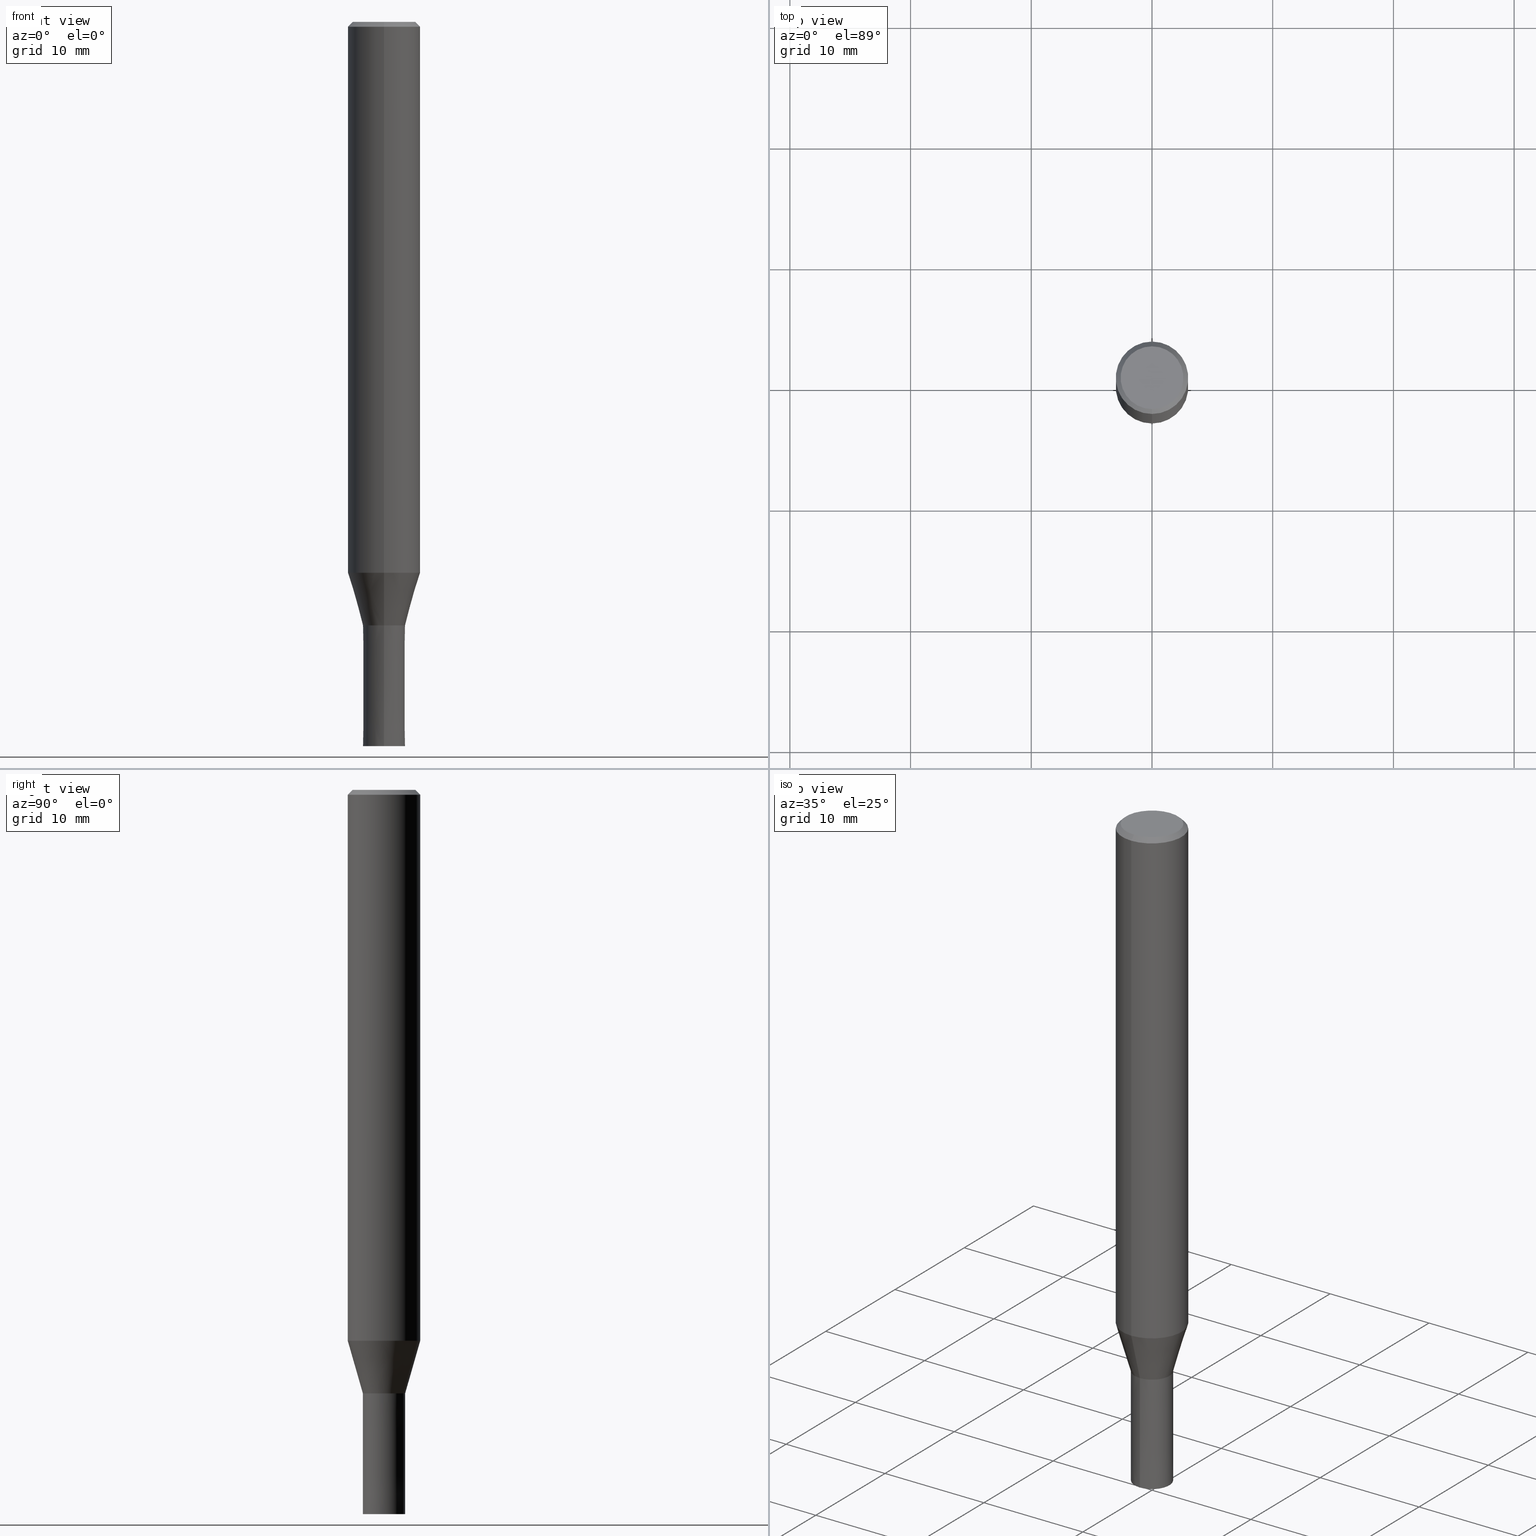
[diagram: canonical four-view strip — front | top / right | iso, engineering-drawing reading convention]
A machine part, canonical four-view strip (front | top / right | iso — engineering-drawing reading convention). The complete STEP part file that produces these views, byte-faithful:
ISO-10303-21;
HEADER;
FILE_DESCRIPTION(('no description'),'unknown implementation level');
FILE_NAME('CZS4035-1000-Huellk.stp','  ',('CIMSOURCE GmbH'),('CADClick - KiM GmbH - www.kimweb.de'),'unknown preprocess','ACIS','unknown authorization');
FILE_SCHEMA(('automotive_design'));
ENDSEC;
DATA;
#1=MECHANICAL_DESIGN_GEOMETRIC_PRESENTATION_REPRESENTATION(' ',(#14,#15,#16,#17,#18,#19,#20,#21,#22,#23,#24,#25,#26,#27,#28,#29,#30,#31,#32,#33,#34,#35,#36,#37,#38,#39,#40,#41,#42,#43,#44,#45,#46,#47,#48,#49,#50,#51,#52,#53,#54,#55,#56,#57,#58,#59,#60,#61,#62,#63,#64),#10);
#2=PRODUCT_DEFINITION_CONTEXT('',#65,'design');
#3=APPLICATION_PROTOCOL_DEFINITION('INTERNATIONAL STANDARD','automotive_design',1994,#65);
#4=PRODUCT_CATEGORY_RELATIONSHIP('NONE','NONE',#66,#67);
#5=SHAPE_DEFINITION_REPRESENTATION(#68,#69);
#6=PRODUCT_DEFINITION_CONTEXT('',#70,'design');
#7=APPLICATION_PROTOCOL_DEFINITION('INTERNATIONAL STANDARD','automotive_design',1994,#70);
#8=PRODUCT_CATEGORY_RELATIONSHIP('NONE','NONE',#71,#72);
#9=SHAPE_DEFINITION_REPRESENTATION(#73,#74);
#10= (GEOMETRIC_REPRESENTATION_CONTEXT(3)GLOBAL_UNCERTAINTY_ASSIGNED_CONTEXT((#77))GLOBAL_UNIT_ASSIGNED_CONTEXT((#79,#80,#81))REPRESENTATION_CONTEXT('NONE','WORKSPACE'));
#14=STYLED_ITEM('',(#83),#84);
#15=STYLED_ITEM('',(#85),#86);
#16=STYLED_ITEM('',(#87),#88);
#17=STYLED_ITEM('',(#89),#90);
#18=STYLED_ITEM('',(#91),#92);
#19=STYLED_ITEM('',(#93),#94);
#20=STYLED_ITEM('',(#95),#96);
#21=STYLED_ITEM('',(#97),#98);
#22=STYLED_ITEM('',(#99),#100);
#23=STYLED_ITEM('',(#101),#102);
#24=STYLED_ITEM('',(#103),#104);
#25=STYLED_ITEM('',(#105),#106);
#26=STYLED_ITEM('',(#107),#108);
#27=STYLED_ITEM('',(#109),#110);
#28=STYLED_ITEM('',(#111),#112);
#29=STYLED_ITEM('',(#113),#114);
#30=STYLED_ITEM('',(#115),#116);
#31=STYLED_ITEM('',(#117),#118);
#32=STYLED_ITEM('',(#119),#120);
#33=STYLED_ITEM('',(#121),#122);
#34=STYLED_ITEM('',(#123),#124);
#35=STYLED_ITEM('',(#125),#126);
#36=STYLED_ITEM('',(#127),#128);
#37=STYLED_ITEM('',(#129),#130);
#38=STYLED_ITEM('',(#131),#132);
#39=STYLED_ITEM('',(#133),#134);
#40=STYLED_ITEM('',(#135),#136);
#41=STYLED_ITEM('',(#137),#138);
#42=STYLED_ITEM('',(#139),#140);
#43=STYLED_ITEM('',(#141),#142);
#44=STYLED_ITEM('',(#143),#144);
#45=STYLED_ITEM('',(#145),#146);
#46=STYLED_ITEM('',(#147),#148);
#47=STYLED_ITEM('',(#149),#150);
#48=STYLED_ITEM('',(#151),#152);
#49=STYLED_ITEM('',(#153),#154);
#50=STYLED_ITEM('',(#155),#156);
#51=STYLED_ITEM('',(#157),#158);
#52=STYLED_ITEM('',(#159),#160);
#53=STYLED_ITEM('',(#161),#162);
#54=STYLED_ITEM('',(#163),#164);
#55=STYLED_ITEM('',(#165),#166);
#56=STYLED_ITEM('',(#167),#168);
#57=STYLED_ITEM('',(#169),#170);
#58=STYLED_ITEM('',(#171),#172);
#59=STYLED_ITEM('',(#173),#174);
#60=STYLED_ITEM('',(#175),#176);
#61=STYLED_ITEM('',(#177),#178);
#62=STYLED_ITEM('',(#179),#180);
#63=STYLED_ITEM('',(#181),#182);
#64=STYLED_ITEM('',(#183),#184);
#65=APPLICATION_CONTEXT(' ');
#66=PRODUCT_CATEGORY('part','NONE');
#67=PRODUCT_RELATED_PRODUCT_CATEGORY('detail',' ',(#185));
#68=PRODUCT_DEFINITION_SHAPE('NONE','NONE',#186);
#69=ADVANCED_BREP_SHAPE_REPRESENTATION('1',(#150,#187),#10);
#70=APPLICATION_CONTEXT(' ');
#71=PRODUCT_CATEGORY('part','NONE');
#72=PRODUCT_RELATED_PRODUCT_CATEGORY('detail',' ',(#188));
#73=PRODUCT_DEFINITION_SHAPE('NONE','NONE',#189);
#74=ADVANCED_BREP_SHAPE_REPRESENTATION('2',(#160,#190),#10);
#77=UNCERTAINTY_MEASURE_WITH_UNIT(LENGTH_MEASURE(1.0E-006),#79,'','');
#79= (CONVERSION_BASED_UNIT('MILLIMETRE',#193)LENGTH_UNIT()NAMED_UNIT(#196));
#80= (NAMED_UNIT(#198)PLANE_ANGLE_UNIT()SI_UNIT($,.RADIAN.));
#81= (NAMED_UNIT(#198)SOLID_ANGLE_UNIT()SI_UNIT($,.STERADIAN.));
#83=PRESENTATION_STYLE_ASSIGNMENT((#204));
#84=ADVANCED_FACE('',(#205),#206,.T.);
#85=PRESENTATION_STYLE_ASSIGNMENT((#207));
#86=VERTEX_POINT('',#208);
#87=PRESENTATION_STYLE_ASSIGNMENT((#209));
#88=EDGE_CURVE('',#98,#122,#210,.T.);
#89=PRESENTATION_STYLE_ASSIGNMENT((#211));
#90=EDGE_CURVE('',#158,#174,#212,.T.);
#91=PRESENTATION_STYLE_ASSIGNMENT((#213));
#92=VERTEX_POINT('',#214);
#93=PRESENTATION_STYLE_ASSIGNMENT((#215));
#94=EDGE_CURVE('',#92,#168,#216,.T.);
#95=PRESENTATION_STYLE_ASSIGNMENT((#217));
#96=EDGE_CURVE('',#132,#86,#218,.T.);
#97=PRESENTATION_STYLE_ASSIGNMENT((#219));
#98=VERTEX_POINT('',#220);
#99=PRESENTATION_STYLE_ASSIGNMENT((#221));
#100=EDGE_CURVE('',#120,#124,#222,.T.);
#101=PRESENTATION_STYLE_ASSIGNMENT((#223));
#102=ADVANCED_FACE('',(#224),#225,.T.);
#103=PRESENTATION_STYLE_ASSIGNMENT((#226));
#104=ADVANCED_FACE('',(#227),#228,.T.);
#105=PRESENTATION_STYLE_ASSIGNMENT((#229));
#106=EDGE_CURVE('',#120,#118,#230,.T.);
#107=PRESENTATION_STYLE_ASSIGNMENT((#231));
#108=ADVANCED_FACE('',(#232),#233,.T.);
#109=PRESENTATION_STYLE_ASSIGNMENT((#234));
#110=EDGE_CURVE('',#132,#122,#235,.T.);
#111=PRESENTATION_STYLE_ASSIGNMENT((#236));
#112=ADVANCED_FACE('',(#237),#238,.T.);
#113=PRESENTATION_STYLE_ASSIGNMENT((#239));
#114=EDGE_CURVE('',#168,#92,#240,.T.);
#115=PRESENTATION_STYLE_ASSIGNMENT((#241));
#116=EDGE_CURVE('',#122,#168,#242,.T.);
#117=PRESENTATION_STYLE_ASSIGNMENT((#243));
#118=VERTEX_POINT('',#244);
#119=PRESENTATION_STYLE_ASSIGNMENT((#245));
#120=VERTEX_POINT('',#246);
#121=PRESENTATION_STYLE_ASSIGNMENT((#247));
#122=VERTEX_POINT('',#248);
#123=PRESENTATION_STYLE_ASSIGNMENT((#249));
#124=VERTEX_POINT('',#250);
#125=PRESENTATION_STYLE_ASSIGNMENT((#251));
#126=VERTEX_POINT('',#252);
#127=PRESENTATION_STYLE_ASSIGNMENT((#253));
#128=EDGE_CURVE('',#86,#132,#254,.T.);
#129=PRESENTATION_STYLE_ASSIGNMENT((#255));
#130=EDGE_CURVE('',#126,#118,#256,.T.);
#131=PRESENTATION_STYLE_ASSIGNMENT((#257));
#132=VERTEX_POINT('',#258);
#133=PRESENTATION_STYLE_ASSIGNMENT((#259));
#134=EDGE_CURVE('',#98,#86,#260,.T.);
#135=PRESENTATION_STYLE_ASSIGNMENT((#261));
#136=ADVANCED_FACE('',(#262),#263,.T.);
#137=PRESENTATION_STYLE_ASSIGNMENT((#264));
#138=ADVANCED_FACE('',(#265),#266,.T.);
#139=PRESENTATION_STYLE_ASSIGNMENT((#267));
#140=ADVANCED_FACE('',(#268),#269,.T.);
#141=PRESENTATION_STYLE_ASSIGNMENT((#270));
#142=EDGE_CURVE('',#126,#124,#271,.T.);
#143=PRESENTATION_STYLE_ASSIGNMENT((#272));
#144=ADVANCED_FACE('',(#273),#274,.T.);
#145=PRESENTATION_STYLE_ASSIGNMENT((#275));
#146=EDGE_CURVE('',#124,#120,#276,.T.);
#147=PRESENTATION_STYLE_ASSIGNMENT((#277));
#148=EDGE_CURVE('',#122,#98,#278,.T.);
#149=PRESENTATION_STYLE_ASSIGNMENT((#279));
#150=MANIFOLD_SOLID_BREP('1',#280);
#151=PRESENTATION_STYLE_ASSIGNMENT((#281));
#152=EDGE_CURVE('',#180,#174,#282,.T.);
#153=PRESENTATION_STYLE_ASSIGNMENT((#283));
#154=VERTEX_POINT('',#284);
#155=PRESENTATION_STYLE_ASSIGNMENT((#285));
#156=EDGE_CURVE('',#180,#154,#286,.T.);
#157=PRESENTATION_STYLE_ASSIGNMENT((#287));
#158=VERTEX_POINT('',#288);
#159=PRESENTATION_STYLE_ASSIGNMENT((#289));
#160=MANIFOLD_SOLID_BREP('2',#290);
#161=PRESENTATION_STYLE_ASSIGNMENT((#291));
#162=ADVANCED_FACE('',(#292),#293,.T.);
#163=PRESENTATION_STYLE_ASSIGNMENT((#294));
#164=EDGE_CURVE('',#154,#180,#295,.T.);
#165=PRESENTATION_STYLE_ASSIGNMENT((#296));
#166=ADVANCED_FACE('',(#297),#298,.T.);
#167=PRESENTATION_STYLE_ASSIGNMENT((#299));
#168=VERTEX_POINT('',#300);
#169=PRESENTATION_STYLE_ASSIGNMENT((#301));
#170=EDGE_CURVE('',#174,#158,#302,.T.);
#171=PRESENTATION_STYLE_ASSIGNMENT((#303));
#172=EDGE_CURVE('',#158,#154,#304,.T.);
#173=PRESENTATION_STYLE_ASSIGNMENT((#305));
#174=VERTEX_POINT('',#306);
#175=PRESENTATION_STYLE_ASSIGNMENT((#307));
#176=EDGE_CURVE('',#118,#126,#308,.T.);
#177=PRESENTATION_STYLE_ASSIGNMENT((#309));
#178=EDGE_CURVE('',#92,#98,#310,.T.);
#179=PRESENTATION_STYLE_ASSIGNMENT((#311));
#180=VERTEX_POINT('',#312);
#181=PRESENTATION_STYLE_ASSIGNMENT((#313));
#182=ADVANCED_FACE('',(#314,#315),#316,.T.);
#183=PRESENTATION_STYLE_ASSIGNMENT((#317));
#184=ADVANCED_FACE('',(#318),#319,.T.);
#185=PRODUCT('1','1','PART-1-DESC',(#320));
#186=PRODUCT_DEFINITION('NONE','NONE',#321,#2);
#187=AXIS2_PLACEMENT_3D('',#322,#323,#324);
#188=PRODUCT('2','2','PART-2-DESC',(#325));
#189=PRODUCT_DEFINITION('NONE','NONE',#326,#6);
#190=AXIS2_PLACEMENT_3D('',#327,#328,#329);
#193=LENGTH_MEASURE_WITH_UNIT(LENGTH_MEASURE(1.0),#330);
#196=DIMENSIONAL_EXPONENTS(1.0,0.0,0.0,0.0,0.0,0.0,0.0);
#198=DIMENSIONAL_EXPONENTS(0.0,0.0,0.0,0.0,0.0,0.0,0.0);
#204=SURFACE_STYLE_USAGE(.BOTH.,#331);
#205=FACE_OUTER_BOUND('',#332,.T.);
#206=PLANE('',#333);
#207=POINT_STYLE(' ',#334,POSITIVE_LENGTH_MEASURE(1.0E-006),#335);
#208=CARTESIAN_POINT('',(3.18397651993818E-016,-2.6,0.0));
#209=CURVE_STYLE('',#336,POSITIVE_LENGTH_MEASURE(1.0E-006),#337);
#210=CIRCLE('',#338,3.0);
#211=CURVE_STYLE('',#339,POSITIVE_LENGTH_MEASURE(1.0E-006),#340);
#212=CIRCLE('',#341,1.75);
#213=POINT_STYLE(' ',#342,POSITIVE_LENGTH_MEASURE(1.0E-006),#343);
#214=CARTESIAN_POINT('',(3.67381906146713E-016,-3.0,-45.641));
#215=CURVE_STYLE('',#344,POSITIVE_LENGTH_MEASURE(1.0E-006),#345);
#216=CIRCLE('',#346,3.0);
#217=CURVE_STYLE('',#347,POSITIVE_LENGTH_MEASURE(1.0E-006),#348);
#218=CIRCLE('',#349,2.6);
#219=POINT_STYLE(' ',#350,POSITIVE_LENGTH_MEASURE(1.0E-006),#351);
#220=CARTESIAN_POINT('',(3.67381906146713E-016,-3.0,-0.399999999999999));
#221=CURVE_STYLE('',#352,POSITIVE_LENGTH_MEASURE(1.0E-006),#353);
#222=CIRCLE('',#354,1.74995);
#223=SURFACE_STYLE_USAGE(.BOTH.,#355);
#224=FACE_OUTER_BOUND('',#356,.T.);
#225=CONICAL_SURFACE('',#357,1.74995,9.99999999966557E-006);
#226=SURFACE_STYLE_USAGE(.BOTH.,#358);
#227=FACE_OUTER_BOUND('',#359,.T.);
#228=PLANE('',#360);
#229=CURVE_STYLE('',#361,POSITIVE_LENGTH_MEASURE(1.0E-006),#362);
#230=LINE('',#363,#364);
#231=SURFACE_STYLE_USAGE(.BOTH.,#365);
#232=FACE_OUTER_BOUND('',#366,.T.);
#233=CONICAL_SURFACE('',#367,2.8,0.78539816339745);
#234=CURVE_STYLE('',#368,POSITIVE_LENGTH_MEASURE(1.0E-006),#369);
#235=LINE('',#370,#371);
#236=SURFACE_STYLE_USAGE(.BOTH.,#372);
#237=FACE_OUTER_BOUND('',#373,.T.);
#238=PLANE('',#374);
#239=CURVE_STYLE('',#375,POSITIVE_LENGTH_MEASURE(1.0E-006),#376);
#240=CIRCLE('',#377,3.0);
#241=CURVE_STYLE('',#378,POSITIVE_LENGTH_MEASURE(1.0E-006),#379);
#242=LINE('',#380,#381);
#243=POINT_STYLE(' ',#382,POSITIVE_LENGTH_MEASURE(1.0E-006),#383);
#244=CARTESIAN_POINT('',(3.67375783114944E-016,-2.99995,-45.641));
#245=POINT_STYLE(' ',#384,POSITIVE_LENGTH_MEASURE(1.0E-006),#385);
#246=CARTESIAN_POINT('',(2.14299988887147E-016,-1.74995,-50.0));
#247=POINT_STYLE(' ',#386,POSITIVE_LENGTH_MEASURE(1.0E-006),#387);
#248=CARTESIAN_POINT('',(0.0,3.0,-0.399999999999999));
#249=POINT_STYLE(' ',#388,POSITIVE_LENGTH_MEASURE(1.0E-006),#389);
#250=CARTESIAN_POINT('',(0.0,1.74995,-50.0));
#251=POINT_STYLE(' ',#390,POSITIVE_LENGTH_MEASURE(1.0E-006),#391);
#252=CARTESIAN_POINT('',(0.0,2.99995,-45.641));
#253=CURVE_STYLE('',#392,POSITIVE_LENGTH_MEASURE(1.0E-006),#393);
#254=CIRCLE('',#394,2.6);
#255=CURVE_STYLE('',#395,POSITIVE_LENGTH_MEASURE(1.0E-006),#396);
#256=CIRCLE('',#397,2.99995);
#257=POINT_STYLE(' ',#398,POSITIVE_LENGTH_MEASURE(1.0E-006),#399);
#258=CARTESIAN_POINT('',(0.0,2.6,0.0));
#259=CURVE_STYLE('',#400,POSITIVE_LENGTH_MEASURE(1.0E-006),#401);
#260=LINE('',#402,#403);
#261=SURFACE_STYLE_USAGE(.BOTH.,#404);
#262=FACE_OUTER_BOUND('',#405,.T.);
#263=CONICAL_SURFACE('',#406,2.37495,0.279268973819818);
#264=SURFACE_STYLE_USAGE(.BOTH.,#407);
#265=FACE_OUTER_BOUND('',#408,.T.);
#266=CYLINDRICAL_SURFACE('',#409,3.0);
#267=SURFACE_STYLE_USAGE(.BOTH.,#410);
#268=FACE_OUTER_BOUND('',#411,.T.);
#269=CONICAL_SURFACE('',#412,2.37495,0.279268973819818);
#270=CURVE_STYLE('',#413,POSITIVE_LENGTH_MEASURE(1.0E-006),#414);
#271=LINE('',#415,#416);
#272=SURFACE_STYLE_USAGE(.BOTH.,#417);
#273=FACE_OUTER_BOUND('',#418,.T.);
#274=CONICAL_SURFACE('',#419,2.8,0.78539816339745);
#275=CURVE_STYLE('',#420,POSITIVE_LENGTH_MEASURE(1.0E-006),#421);
#276=CIRCLE('',#422,1.74995);
#277=CURVE_STYLE('',#423,POSITIVE_LENGTH_MEASURE(1.0E-006),#424);
#278=CIRCLE('',#425,3.0);
#279=SURFACE_STYLE_USAGE(.BOTH.,#426);
#280=CLOSED_SHELL('',(#136,#138,#144,#182,#84,#108,#166,#140,#112));
#281=CURVE_STYLE('',#427,POSITIVE_LENGTH_MEASURE(1.0E-006),#428);
#282=LINE('',#429,#430);
#283=POINT_STYLE(' ',#431,POSITIVE_LENGTH_MEASURE(1.0E-006),#432);
#284=CARTESIAN_POINT('',(2.14293865855378E-016,-1.7499,-50.0));
#285=CURVE_STYLE('',#433,POSITIVE_LENGTH_MEASURE(1.0E-006),#434);
#286=CIRCLE('',#435,1.7499);
#287=POINT_STYLE(' ',#436,POSITIVE_LENGTH_MEASURE(1.0E-006),#437);
#288=CARTESIAN_POINT('',(2.14306111918916E-016,-1.75,-60.0));
#289=SURFACE_STYLE_USAGE(.BOTH.,#438);
#290=CLOSED_SHELL('',(#162,#184,#102,#104));
#291=SURFACE_STYLE_USAGE(.BOTH.,#439);
#292=FACE_OUTER_BOUND('',#440,.T.);
#293=CONICAL_SURFACE('',#441,1.74995,9.99999999966557E-006);
#294=CURVE_STYLE('',#442,POSITIVE_LENGTH_MEASURE(1.0E-006),#443);
#295=CIRCLE('',#444,1.7499);
#296=SURFACE_STYLE_USAGE(.BOTH.,#445);
#297=FACE_OUTER_BOUND('',#446,.T.);
#298=CYLINDRICAL_SURFACE('',#447,3.0);
#299=POINT_STYLE(' ',#448,POSITIVE_LENGTH_MEASURE(1.0E-006),#449);
#300=CARTESIAN_POINT('',(0.0,3.0,-45.641));
#301=CURVE_STYLE('',#450,POSITIVE_LENGTH_MEASURE(1.0E-006),#451);
#302=CIRCLE('',#452,1.75);
#303=CURVE_STYLE('',#453,POSITIVE_LENGTH_MEASURE(1.0E-006),#454);
#304=LINE('',#455,#456);
#305=POINT_STYLE(' ',#457,POSITIVE_LENGTH_MEASURE(1.0E-006),#458);
#306=CARTESIAN_POINT('',(0.0,1.75,-60.0));
#307=CURVE_STYLE('',#459,POSITIVE_LENGTH_MEASURE(1.0E-006),#460);
#308=CIRCLE('',#461,2.99995);
#309=CURVE_STYLE('',#462,POSITIVE_LENGTH_MEASURE(1.0E-006),#463);
#310=LINE('',#464,#465);
#311=POINT_STYLE(' ',#466,POSITIVE_LENGTH_MEASURE(1.0E-006),#467);
#312=CARTESIAN_POINT('',(0.0,1.7499,-50.0));
#313=SURFACE_STYLE_USAGE(.BOTH.,#468);
#314=FACE_OUTER_BOUND('',#469,.T.);
#315=FACE_BOUND('',#470,.T.);
#316=PLANE('',#471);
#317=SURFACE_STYLE_USAGE(.BOTH.,#472);
#318=FACE_OUTER_BOUND('',#473,.T.);
#319=PLANE('',#474);
#320=PRODUCT_CONTEXT('',#65,'mechanical');
#321=PRODUCT_DEFINITION_FORMATION_WITH_SPECIFIED_SOURCE(' ','NONE',#185,.NOT_KNOWN.);
#322=CARTESIAN_POINT('',(0.0,0.0,0.0));
#323=DIRECTION('',(0.0,0.0,1.0));
#324=DIRECTION('',(1.0,0.0,0.0));
#325=PRODUCT_CONTEXT('',#70,'mechanical');
#326=PRODUCT_DEFINITION_FORMATION_WITH_SPECIFIED_SOURCE(' ','NONE',#188,.NOT_KNOWN.);
#327=CARTESIAN_POINT('',(0.0,0.0,0.0));
#328=DIRECTION('',(0.0,0.0,1.0));
#329=DIRECTION('',(1.0,0.0,0.0));
#330= (NAMED_UNIT(#196)LENGTH_UNIT()SI_UNIT(.MILLI.,.METRE.));
#331=SURFACE_SIDE_STYLE('',(#476));
#332=EDGE_LOOP('',(#477,#478));
#333=AXIS2_PLACEMENT_3D('',#479,#480,#481);
#334=PRE_DEFINED_MARKER('');
#335=COLOUR_RGB('',0.498039215803146,0.498039215803146,0.498039215803146);
#336=DRAUGHTING_PRE_DEFINED_CURVE_FONT('continuous');
#337=COLOUR_RGB('',0.498039215803146,0.498039215803146,0.498039215803146);
#338=AXIS2_PLACEMENT_3D('',#482,#483,#484);
#339=DRAUGHTING_PRE_DEFINED_CURVE_FONT('continuous');
#340=COLOUR_RGB('',0.800000011920929,0.800000011920929,0.800000011920929);
#341=AXIS2_PLACEMENT_3D('',#485,#486,#487);
#342=PRE_DEFINED_MARKER('');
#343=COLOUR_RGB('',0.498039215803146,0.498039215803146,0.498039215803146);
#344=DRAUGHTING_PRE_DEFINED_CURVE_FONT('continuous');
#345=COLOUR_RGB('',0.498039215803146,0.498039215803146,0.498039215803146);
#346=AXIS2_PLACEMENT_3D('',#488,#489,#490);
#347=DRAUGHTING_PRE_DEFINED_CURVE_FONT('continuous');
#348=COLOUR_RGB('',0.498039215803146,0.498039215803146,0.498039215803146);
#349=AXIS2_PLACEMENT_3D('',#491,#492,#493);
#350=PRE_DEFINED_MARKER('');
#351=COLOUR_RGB('',0.498039215803146,0.498039215803146,0.498039215803146);
#352=DRAUGHTING_PRE_DEFINED_CURVE_FONT('continuous');
#353=COLOUR_RGB('',0.498039215803146,0.498039215803146,0.498039215803146);
#354=AXIS2_PLACEMENT_3D('',#494,#495,#496);
#355=SURFACE_SIDE_STYLE('',(#497));
#356=EDGE_LOOP('',(#498,#499,#500,#501));
#357=AXIS2_PLACEMENT_3D('',#502,#503,#504);
#358=SURFACE_SIDE_STYLE('',(#505));
#359=EDGE_LOOP('',(#506,#507));
#360=AXIS2_PLACEMENT_3D('',#508,#509,#510);
#361=DRAUGHTING_PRE_DEFINED_CURVE_FONT('continuous');
#362=COLOUR_RGB('',0.498039215803146,0.498039215803146,0.498039215803146);
#363=CARTESIAN_POINT('',(2.90837886001046E-016,-2.37495,-47.8205));
#364=VECTOR('',#511,1.0);
#365=SURFACE_SIDE_STYLE('',(#512));
#366=EDGE_LOOP('',(#513,#514,#515,#516));
#367=AXIS2_PLACEMENT_3D('',#517,#518,#519);
#368=DRAUGHTING_PRE_DEFINED_CURVE_FONT('continuous');
#369=COLOUR_RGB('',0.498039215803146,0.498039215803146,0.498039215803146);
#370=CARTESIAN_POINT('',(-3.42889779070266E-016,2.8,-0.200000000000003));
#371=VECTOR('',#520,1.0);
#372=SURFACE_SIDE_STYLE('',(#521));
#373=EDGE_LOOP('',(#522,#523));
#374=AXIS2_PLACEMENT_3D('',#524,#525,#526);
#375=DRAUGHTING_PRE_DEFINED_CURVE_FONT('continuous');
#376=COLOUR_RGB('',0.498039215803146,0.498039215803146,0.498039215803146);
#377=AXIS2_PLACEMENT_3D('',#527,#528,#529);
#378=DRAUGHTING_PRE_DEFINED_CURVE_FONT('continuous');
#379=COLOUR_RGB('',0.498039215803146,0.498039215803146,0.498039215803146);
#380=CARTESIAN_POINT('',(-3.67381906146713E-016,3.0,-23.0205));
#381=VECTOR('',#530,1.0);
#382=PRE_DEFINED_MARKER('');
#383=COLOUR_RGB('',0.498039215803146,0.498039215803146,0.498039215803146);
#384=PRE_DEFINED_MARKER('');
#385=COLOUR_RGB('',0.498039215803146,0.498039215803146,0.498039215803146);
#386=PRE_DEFINED_MARKER('');
#387=COLOUR_RGB('',0.498039215803146,0.498039215803146,0.498039215803146);
#388=PRE_DEFINED_MARKER('');
#389=COLOUR_RGB('',0.498039215803146,0.498039215803146,0.498039215803146);
#390=PRE_DEFINED_MARKER('');
#391=COLOUR_RGB('',0.498039215803146,0.498039215803146,0.498039215803146);
#392=DRAUGHTING_PRE_DEFINED_CURVE_FONT('continuous');
#393=COLOUR_RGB('',0.498039215803146,0.498039215803146,0.498039215803146);
#394=AXIS2_PLACEMENT_3D('',#531,#532,#533);
#395=DRAUGHTING_PRE_DEFINED_CURVE_FONT('continuous');
#396=COLOUR_RGB('',0.498039215803146,0.498039215803146,0.498039215803146);
#397=AXIS2_PLACEMENT_3D('',#534,#535,#536);
#398=PRE_DEFINED_MARKER('');
#399=COLOUR_RGB('',0.498039215803146,0.498039215803146,0.498039215803146);
#400=DRAUGHTING_PRE_DEFINED_CURVE_FONT('continuous');
#401=COLOUR_RGB('',0.498039215803146,0.498039215803146,0.498039215803146);
#402=CARTESIAN_POINT('',(3.42889779070266E-016,-2.8,-0.200000000000003));
#403=VECTOR('',#537,1.0);
#404=SURFACE_SIDE_STYLE('',(#538));
#405=EDGE_LOOP('',(#539,#540,#541,#542));
#406=AXIS2_PLACEMENT_3D('',#543,#544,#545);
#407=SURFACE_SIDE_STYLE('',(#546));
#408=EDGE_LOOP('',(#547,#548,#549,#550));
#409=AXIS2_PLACEMENT_3D('',#551,#552,#553);
#410=SURFACE_SIDE_STYLE('',(#554));
#411=EDGE_LOOP('',(#555,#556,#557,#558));
#412=AXIS2_PLACEMENT_3D('',#559,#560,#561);
#413=DRAUGHTING_PRE_DEFINED_CURVE_FONT('continuous');
#414=COLOUR_RGB('',0.498039215803146,0.498039215803146,0.498039215803146);
#415=CARTESIAN_POINT('',(-2.90837886001046E-016,2.37495,-47.8205));
#416=VECTOR('',#562,1.0);
#417=SURFACE_SIDE_STYLE('',(#563));
#418=EDGE_LOOP('',(#564,#565,#566,#567));
#419=AXIS2_PLACEMENT_3D('',#568,#569,#570);
#420=DRAUGHTING_PRE_DEFINED_CURVE_FONT('continuous');
#421=COLOUR_RGB('',0.498039215803146,0.498039215803146,0.498039215803146);
#422=AXIS2_PLACEMENT_3D('',#571,#572,#573);
#423=DRAUGHTING_PRE_DEFINED_CURVE_FONT('continuous');
#424=COLOUR_RGB('',0.498039215803146,0.498039215803146,0.498039215803146);
#425=AXIS2_PLACEMENT_3D('',#574,#575,#576);
#426=SURFACE_SIDE_STYLE('',(#577));
#427=DRAUGHTING_PRE_DEFINED_CURVE_FONT('continuous');
#428=COLOUR_RGB('',0.800000011920929,0.800000011920929,0.800000011920929);
#429=CARTESIAN_POINT('',(-2.14299988887147E-016,1.74995,-55.0));
#430=VECTOR('',#578,1.0);
#431=PRE_DEFINED_MARKER('');
#432=COLOUR_RGB('',0.800000011920929,0.800000011920929,0.800000011920929);
#433=DRAUGHTING_PRE_DEFINED_CURVE_FONT('continuous');
#434=COLOUR_RGB('',0.800000011920929,0.800000011920929,0.800000011920929);
#435=AXIS2_PLACEMENT_3D('',#579,#580,#581);
#436=PRE_DEFINED_MARKER('');
#437=COLOUR_RGB('',0.800000011920929,0.800000011920929,0.800000011920929);
#438=SURFACE_SIDE_STYLE('',(#582));
#439=SURFACE_SIDE_STYLE('',(#583));
#440=EDGE_LOOP('',(#584,#585,#586,#587));
#441=AXIS2_PLACEMENT_3D('',#588,#589,#590);
#442=DRAUGHTING_PRE_DEFINED_CURVE_FONT('continuous');
#443=COLOUR_RGB('',0.800000011920929,0.800000011920929,0.800000011920929);
#444=AXIS2_PLACEMENT_3D('',#591,#592,#593);
#445=SURFACE_SIDE_STYLE('',(#594));
#446=EDGE_LOOP('',(#595,#596,#597,#598));
#447=AXIS2_PLACEMENT_3D('',#599,#600,#601);
#448=PRE_DEFINED_MARKER('');
#449=COLOUR_RGB('',0.498039215803146,0.498039215803146,0.498039215803146);
#450=DRAUGHTING_PRE_DEFINED_CURVE_FONT('continuous');
#451=COLOUR_RGB('',0.800000011920929,0.800000011920929,0.800000011920929);
#452=AXIS2_PLACEMENT_3D('',#602,#603,#604);
#453=DRAUGHTING_PRE_DEFINED_CURVE_FONT('continuous');
#454=COLOUR_RGB('',0.800000011920929,0.800000011920929,0.800000011920929);
#455=CARTESIAN_POINT('',(2.14299988887147E-016,-1.74995,-55.0));
#456=VECTOR('',#605,1.0);
#457=PRE_DEFINED_MARKER('');
#458=COLOUR_RGB('',0.800000011920929,0.800000011920929,0.800000011920929);
#459=DRAUGHTING_PRE_DEFINED_CURVE_FONT('continuous');
#460=COLOUR_RGB('',0.498039215803146,0.498039215803146,0.498039215803146);
#461=AXIS2_PLACEMENT_3D('',#606,#607,#608);
#462=DRAUGHTING_PRE_DEFINED_CURVE_FONT('continuous');
#463=COLOUR_RGB('',0.498039215803146,0.498039215803146,0.498039215803146);
#464=CARTESIAN_POINT('',(3.67381906146713E-016,-3.0,-23.0205));
#465=VECTOR('',#609,1.0);
#466=PRE_DEFINED_MARKER('');
#467=COLOUR_RGB('',0.800000011920929,0.800000011920929,0.800000011920929);
#468=SURFACE_SIDE_STYLE('',(#610));
#469=EDGE_LOOP('',(#611,#612));
#470=EDGE_LOOP('',(#613,#614));
#471=AXIS2_PLACEMENT_3D('',#615,#616,#617);
#472=SURFACE_SIDE_STYLE('',(#618));
#473=EDGE_LOOP('',(#619,#620));
#474=AXIS2_PLACEMENT_3D('',#621,#622,#623);
#476=SURFACE_STYLE_FILL_AREA(#624);
#477=ORIENTED_EDGE('',*,*,#96,.F.);
#478=ORIENTED_EDGE('',*,*,#128,.F.);
#479=CARTESIAN_POINT('',(0.0,1.3,0.0));
#480=DIRECTION('',(-0.0,0.0,1.0));
#481=DIRECTION('',(0.0,-1.0,0.0));
#482=CARTESIAN_POINT('',(0.0,0.0,-0.399999999999999));
#483=DIRECTION('',(0.0,0.0,-1.0));
#484=DIRECTION('',(0.0,1.0,0.0));
#485=CARTESIAN_POINT('',(0.0,0.0,-60.0));
#486=DIRECTION('',(0.0,0.0,-1.0));
#487=DIRECTION('',(0.0,1.0,0.0));
#488=CARTESIAN_POINT('',(0.0,0.0,-45.641));
#489=DIRECTION('',(0.0,0.0,-1.0));
#490=DIRECTION('',(0.0,1.0,0.0));
#491=CARTESIAN_POINT('',(0.0,0.0,0.0));
#492=DIRECTION('',(0.0,0.0,-1.0));
#493=DIRECTION('',(0.0,1.0,0.0));
#494=CARTESIAN_POINT('',(0.0,0.0,-50.0));
#495=DIRECTION('',(0.0,0.0,-1.0));
#496=DIRECTION('',(0.0,1.0,0.0));
#497=SURFACE_STYLE_FILL_AREA(#625);
#498=ORIENTED_EDGE('',*,*,#152,.T.);
#499=ORIENTED_EDGE('',*,*,#90,.F.);
#500=ORIENTED_EDGE('',*,*,#172,.T.);
#501=ORIENTED_EDGE('',*,*,#164,.T.);
#502=CARTESIAN_POINT('',(0.0,0.0,-55.0));
#503=DIRECTION('',(0.0,-0.0,-1.0));
#504=DIRECTION('',(0.0,1.0,0.0));
#505=SURFACE_STYLE_FILL_AREA(#626);
#506=ORIENTED_EDGE('',*,*,#170,.T.);
#507=ORIENTED_EDGE('',*,*,#90,.T.);
#508=CARTESIAN_POINT('',(0.0,0.8725,-60.0));
#509=DIRECTION('',(0.0,0.0,-1.0));
#510=DIRECTION('',(0.0,1.0,0.0));
#511=DIRECTION('',(3.375664374138E-017,-0.275653018098551,0.961257204713265));
#512=SURFACE_STYLE_FILL_AREA(#627);
#513=ORIENTED_EDGE('',*,*,#110,.T.);
#514=ORIENTED_EDGE('',*,*,#88,.F.);
#515=ORIENTED_EDGE('',*,*,#134,.T.);
#516=ORIENTED_EDGE('',*,*,#128,.T.);
#517=CARTESIAN_POINT('',(0.0,0.0,-0.200000000000003));
#518=DIRECTION('',(0.0,-0.0,-1.0));
#519=DIRECTION('',(0.0,1.0,0.0));
#520=DIRECTION('',(-8.65927457071937E-017,0.707106781186549,-0.707106781186546));
#521=SURFACE_STYLE_FILL_AREA(#628);
#522=ORIENTED_EDGE('',*,*,#146,.T.);
#523=ORIENTED_EDGE('',*,*,#100,.T.);
#524=CARTESIAN_POINT('',(0.0,0.874975,-50.0));
#525=DIRECTION('',(0.0,0.0,-1.0));
#526=DIRECTION('',(0.0,1.0,0.0));
#527=CARTESIAN_POINT('',(0.0,0.0,-45.641));
#528=DIRECTION('',(0.0,0.0,-1.0));
#529=DIRECTION('',(0.0,1.0,0.0));
#530=DIRECTION('',(0.0,0.0,-1.0));
#531=CARTESIAN_POINT('',(0.0,0.0,0.0));
#532=DIRECTION('',(0.0,0.0,-1.0));
#533=DIRECTION('',(0.0,1.0,0.0));
#534=CARTESIAN_POINT('',(0.0,0.0,-45.641));
#535=DIRECTION('',(0.0,0.0,-1.0));
#536=DIRECTION('',(0.0,1.0,0.0));
#537=DIRECTION('',(-8.65927457071937E-017,0.707106781186549,0.707106781186546));
#538=SURFACE_STYLE_FILL_AREA(#629);
#539=ORIENTED_EDGE('',*,*,#142,.F.);
#540=ORIENTED_EDGE('',*,*,#130,.T.);
#541=ORIENTED_EDGE('',*,*,#106,.F.);
#542=ORIENTED_EDGE('',*,*,#146,.F.);
#543=CARTESIAN_POINT('',(0.0,0.0,-47.8205));
#544=DIRECTION('',(-0.0,-0.0,1.0));
#545=DIRECTION('',(0.0,1.0,0.0));
#546=SURFACE_STYLE_FILL_AREA(#630);
#547=ORIENTED_EDGE('',*,*,#116,.F.);
#548=ORIENTED_EDGE('',*,*,#148,.T.);
#549=ORIENTED_EDGE('',*,*,#178,.F.);
#550=ORIENTED_EDGE('',*,*,#114,.F.);
#551=CARTESIAN_POINT('',(0.0,0.0,-23.0205));
#552=DIRECTION('',(-0.0,-0.0,1.0));
#553=DIRECTION('',(0.0,1.0,0.0));
#554=SURFACE_STYLE_FILL_AREA(#631);
#555=ORIENTED_EDGE('',*,*,#142,.T.);
#556=ORIENTED_EDGE('',*,*,#100,.F.);
#557=ORIENTED_EDGE('',*,*,#106,.T.);
#558=ORIENTED_EDGE('',*,*,#176,.T.);
#559=CARTESIAN_POINT('',(0.0,0.0,-47.8205));
#560=DIRECTION('',(-0.0,-0.0,1.0));
#561=DIRECTION('',(0.0,1.0,0.0));
#562=DIRECTION('',(3.375664374138E-017,-0.275653018098551,-0.961257204713265));
#563=SURFACE_STYLE_FILL_AREA(#632);
#564=ORIENTED_EDGE('',*,*,#110,.F.);
#565=ORIENTED_EDGE('',*,*,#96,.T.);
#566=ORIENTED_EDGE('',*,*,#134,.F.);
#567=ORIENTED_EDGE('',*,*,#148,.F.);
#568=CARTESIAN_POINT('',(0.0,0.0,-0.200000000000003));
#569=DIRECTION('',(0.0,-0.0,-1.0));
#570=DIRECTION('',(0.0,1.0,0.0));
#571=CARTESIAN_POINT('',(0.0,0.0,-50.0));
#572=DIRECTION('',(0.0,0.0,-1.0));
#573=DIRECTION('',(0.0,1.0,0.0));
#574=CARTESIAN_POINT('',(0.0,0.0,-0.399999999999999));
#575=DIRECTION('',(0.0,0.0,-1.0));
#576=DIRECTION('',(0.0,1.0,0.0));
#577=SURFACE_STYLE_FILL_AREA(#633);
#578=DIRECTION('',(-1.22460635376101E-021,9.9999999994989E-006,-0.99999999995));
#579=CARTESIAN_POINT('',(0.0,0.0,-50.0));
#580=DIRECTION('',(0.0,0.0,-1.0));
#581=DIRECTION('',(0.0,1.0,0.0));
#582=SURFACE_STYLE_FILL_AREA(#634);
#583=SURFACE_STYLE_FILL_AREA(#635);
#584=ORIENTED_EDGE('',*,*,#152,.F.);
#585=ORIENTED_EDGE('',*,*,#156,.T.);
#586=ORIENTED_EDGE('',*,*,#172,.F.);
#587=ORIENTED_EDGE('',*,*,#170,.F.);
#588=CARTESIAN_POINT('',(0.0,0.0,-55.0));
#589=DIRECTION('',(0.0,-0.0,-1.0));
#590=DIRECTION('',(0.0,1.0,0.0));
#591=CARTESIAN_POINT('',(0.0,0.0,-50.0));
#592=DIRECTION('',(0.0,0.0,-1.0));
#593=DIRECTION('',(0.0,1.0,0.0));
#594=SURFACE_STYLE_FILL_AREA(#636);
#595=ORIENTED_EDGE('',*,*,#116,.T.);
#596=ORIENTED_EDGE('',*,*,#94,.F.);
#597=ORIENTED_EDGE('',*,*,#178,.T.);
#598=ORIENTED_EDGE('',*,*,#88,.T.);
#599=CARTESIAN_POINT('',(0.0,0.0,-23.0205));
#600=DIRECTION('',(-0.0,-0.0,1.0));
#601=DIRECTION('',(0.0,1.0,0.0));
#602=CARTESIAN_POINT('',(0.0,0.0,-60.0));
#603=DIRECTION('',(0.0,0.0,-1.0));
#604=DIRECTION('',(0.0,1.0,0.0));
#605=DIRECTION('',(-1.22460635376101E-021,9.9999999994989E-006,0.99999999995));
#606=CARTESIAN_POINT('',(0.0,0.0,-45.641));
#607=DIRECTION('',(0.0,0.0,-1.0));
#608=DIRECTION('',(0.0,1.0,0.0));
#609=DIRECTION('',(-0.0,-0.0,1.0));
#610=SURFACE_STYLE_FILL_AREA(#637);
#611=ORIENTED_EDGE('',*,*,#114,.T.);
#612=ORIENTED_EDGE('',*,*,#94,.T.);
#613=ORIENTED_EDGE('',*,*,#130,.F.);
#614=ORIENTED_EDGE('',*,*,#176,.F.);
#615=CARTESIAN_POINT('',(0.0,1.5,-45.641));
#616=DIRECTION('',(0.0,0.0,-1.0));
#617=DIRECTION('',(0.0,1.0,0.0));
#618=SURFACE_STYLE_FILL_AREA(#638);
#619=ORIENTED_EDGE('',*,*,#156,.F.);
#620=ORIENTED_EDGE('',*,*,#164,.F.);
#621=CARTESIAN_POINT('',(0.0,0.87495,-50.0));
#622=DIRECTION('',(-0.0,0.0,1.0));
#623=DIRECTION('',(0.0,-1.0,0.0));
#624=FILL_AREA_STYLE('',(#639));
#625=FILL_AREA_STYLE('',(#640));
#626=FILL_AREA_STYLE('',(#641));
#627=FILL_AREA_STYLE('',(#642));
#628=FILL_AREA_STYLE('',(#643));
#629=FILL_AREA_STYLE('',(#644));
#630=FILL_AREA_STYLE('',(#645));
#631=FILL_AREA_STYLE('',(#646));
#632=FILL_AREA_STYLE('',(#647));
#633=FILL_AREA_STYLE('',(#648));
#634=FILL_AREA_STYLE('',(#649));
#635=FILL_AREA_STYLE('',(#650));
#636=FILL_AREA_STYLE('',(#651));
#637=FILL_AREA_STYLE('',(#652));
#638=FILL_AREA_STYLE('',(#653));
#639=FILL_AREA_STYLE_COLOUR('',#654);
#640=FILL_AREA_STYLE_COLOUR('',#655);
#641=FILL_AREA_STYLE_COLOUR('',#656);
#642=FILL_AREA_STYLE_COLOUR('',#657);
#643=FILL_AREA_STYLE_COLOUR('',#658);
#644=FILL_AREA_STYLE_COLOUR('',#659);
#645=FILL_AREA_STYLE_COLOUR('',#660);
#646=FILL_AREA_STYLE_COLOUR('',#661);
#647=FILL_AREA_STYLE_COLOUR('',#662);
#648=FILL_AREA_STYLE_COLOUR('',#663);
#649=FILL_AREA_STYLE_COLOUR('',#664);
#650=FILL_AREA_STYLE_COLOUR('',#665);
#651=FILL_AREA_STYLE_COLOUR('',#666);
#652=FILL_AREA_STYLE_COLOUR('',#667);
#653=FILL_AREA_STYLE_COLOUR('',#668);
#654=COLOUR_RGB('',0.498039215803146,0.498039215803146,0.498039215803146);
#655=COLOUR_RGB('',0.800000011920929,0.800000011920929,0.800000011920929);
#656=COLOUR_RGB('',0.800000011920929,0.800000011920929,0.800000011920929);
#657=COLOUR_RGB('',0.498039215803146,0.498039215803146,0.498039215803146);
#658=COLOUR_RGB('',0.498039215803146,0.498039215803146,0.498039215803146);
#659=COLOUR_RGB('',0.498039215803146,0.498039215803146,0.498039215803146);
#660=COLOUR_RGB('',0.498039215803146,0.498039215803146,0.498039215803146);
#661=COLOUR_RGB('',0.498039215803146,0.498039215803146,0.498039215803146);
#662=COLOUR_RGB('',0.498039215803146,0.498039215803146,0.498039215803146);
#663=COLOUR_RGB('',0.498039215803146,0.498039215803146,0.498039215803146);
#664=COLOUR_RGB('',0.800000011920929,0.800000011920929,0.800000011920929);
#665=COLOUR_RGB('',0.800000011920929,0.800000011920929,0.800000011920929);
#666=COLOUR_RGB('',0.498039215803146,0.498039215803146,0.498039215803146);
#667=COLOUR_RGB('',0.498039215803146,0.498039215803146,0.498039215803146);
#668=COLOUR_RGB('',0.800000011920929,0.800000011920929,0.800000011920929);
#669=AXIS2_PLACEMENT_3D('PCS',#670,#671,#672);
#670=CARTESIAN_POINT('',(0.0,0.0,0.0));
#671=DIRECTION('',(0.0,0.0,1.0));
#672=DIRECTION('',(1.0,0.0,0.0));
#673=AXIS2_PLACEMENT_3D('CIP',#674,#675,#676);
#674=CARTESIAN_POINT('',(0.0,0.0,-60.0));
#675=DIRECTION('',(0.0,0.0,1.0));
#676=DIRECTION('',(1.0,0.0,0.0));
#677=AXIS2_PLACEMENT_3D('CRP',#678,#679,#680);
#678=CARTESIAN_POINT('',(-1.75,0.0,-60.0));
#679=DIRECTION('',(0.0,0.0,1.0));
#680=DIRECTION('',(1.0,0.0,0.0));
#681=AXIS2_PLACEMENT_3D('MCS',#682,#683,#684);
#682=CARTESIAN_POINT('',(0.0,0.0,-45.641));
#683=DIRECTION('',(0.0,0.0,1.0));
#684=DIRECTION('',(1.0,0.0,0.0));
#685=CONSTRUCTIVE_GEOMETRY_REPRESENTATION_RELATIONSHIP('coordinate systems',$,#69,#686);
#686=CONSTRUCTIVE_GEOMETRY_REPRESENTATION('coordinate systems',(#669,#673,#677,#681),#10);
ENDSEC;
END-ISO-10303-21;
